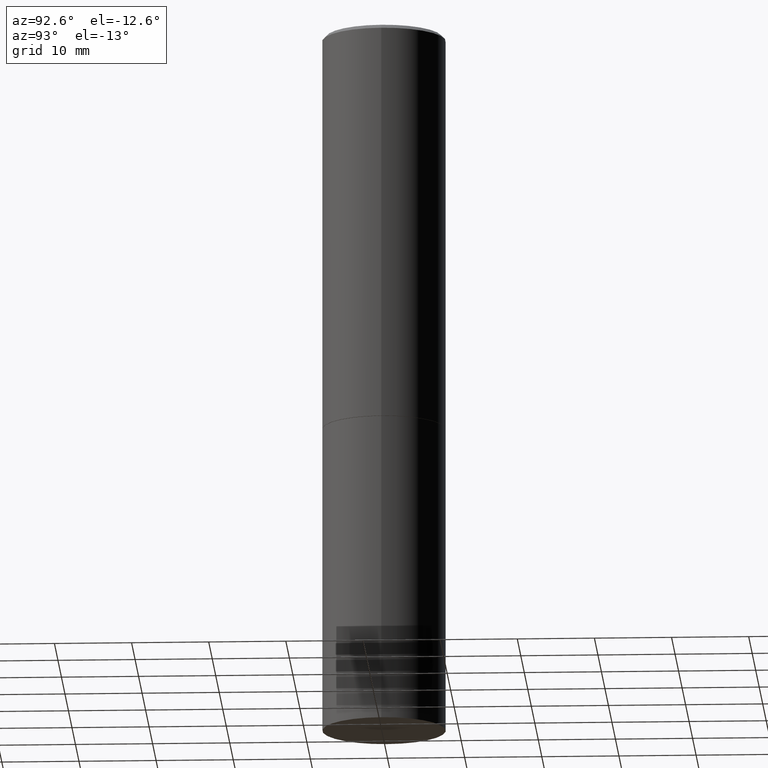
[diagram: clean part render]
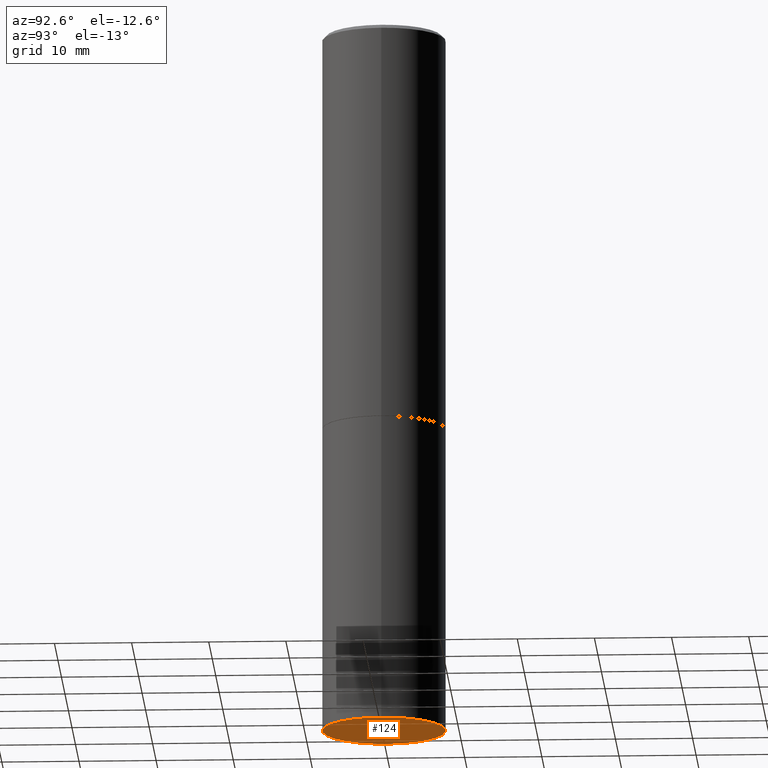
[diagram: same view with one face highlighted and labeled with its STEP entity id]
A machine part, auxiliary view. The second image highlights one B-rep face of the part: STEP entity #124.
In plain terms, the highlighted planar face has unit normal (0, -0, -1).
Its self-contained STEP definition (entity closure, byte-faithful):
#2 = ORIENTED_EDGE ( 'NONE', *, *, #180, .F. ) ;
#8 = AXIS2_PLACEMENT_3D ( 'NONE', #176, #316, #65 ) ;
#65 = DIRECTION ( 'NONE',  ( 1.000000000000000000, -6.982962677686263555E-15, 0.000000000000000000 ) ) ;
#81 = DIRECTION ( 'NONE',  ( 2.438088387897960049E-29, -3.491481338843145188E-15, -1.000000000000000000 ) ) ;
#115 = VERTEX_POINT ( 'NONE', #334 ) ;
#124 = ADVANCED_FACE ( 'NONE', ( #138 ), #251, .T. ) ;
#138 = FACE_OUTER_BOUND ( 'NONE', #147, .T. ) ;
#147 = EDGE_LOOP ( 'NONE', ( #221, #2 ) ) ;
#176 = CARTESIAN_POINT ( 'NONE',  ( 8.857488016002564476E-29, -1.264614540928987199E-14, -3.621999999999999886 ) ) ;
#178 = CARTESIAN_POINT ( 'NONE',  ( 8.857488016002564476E-29, -1.264614540928987199E-14, -3.621999999999999886 ) ) ;
#179 = EDGE_CURVE ( 'NONE', #247, #115, #237, .T. ) ;
#180 = EDGE_CURVE ( 'NONE', #115, #247, #207, .T. ) ;
#193 = DIRECTION ( 'NONE',  ( -1.000000000000000000, 6.982962677686265922E-15, -4.876176775795935793E-29 ) ) ;
#207 = CIRCLE ( 'NONE', #256, 0.3149500000000000077 ) ;
#211 = CARTESIAN_POINT ( 'NONE',  ( 0.3149500000000000077, -1.484542950462716186E-14, -3.621999999999999886 ) ) ;
#221 = ORIENTED_EDGE ( 'NONE', *, *, #179, .F. ) ;
#231 = DIRECTION ( 'NONE',  ( 1.000000000000000000, -6.982962677686263555E-15, 0.000000000000000000 ) ) ;
#237 = CIRCLE ( 'NONE', #8, 0.3149500000000000077 ) ;
#247 = VERTEX_POINT ( 'NONE', #211 ) ;
#251 = PLANE ( 'NONE',  #353 ) ;
#256 = AXIS2_PLACEMENT_3D ( 'NONE', #178, #287, #231 ) ;
#287 = DIRECTION ( 'NONE',  ( -2.445468806185136597E-29, 3.491481338843145583E-15, 1.000000000000000000 ) ) ;
#316 = DIRECTION ( 'NONE',  ( -2.445468806185136597E-29, 3.491481338843145583E-15, 1.000000000000000000 ) ) ;
#334 = CARTESIAN_POINT ( 'NONE',  ( -0.3149500000000000077, -7.659098656808343322E-15, -3.621999999999999886 ) ) ;
#335 = CARTESIAN_POINT ( 'NONE',  ( 2.199284095337378223E-15, 0.3149499999999873512, -3.622000000000000774 ) ) ;
#353 = AXIS2_PLACEMENT_3D ( 'NONE', #335, #81, #193 ) ;